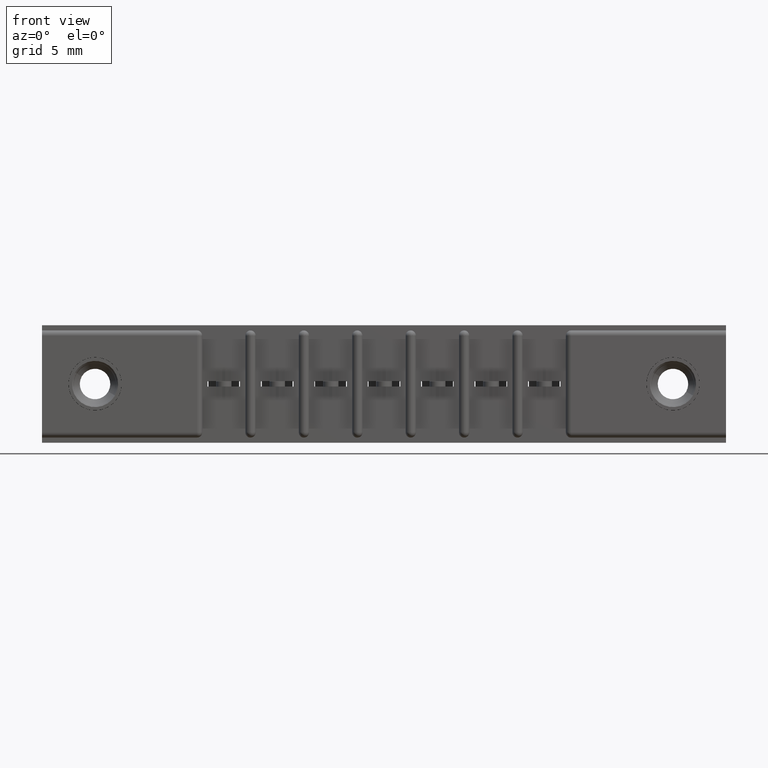
[diagram: clean part render]
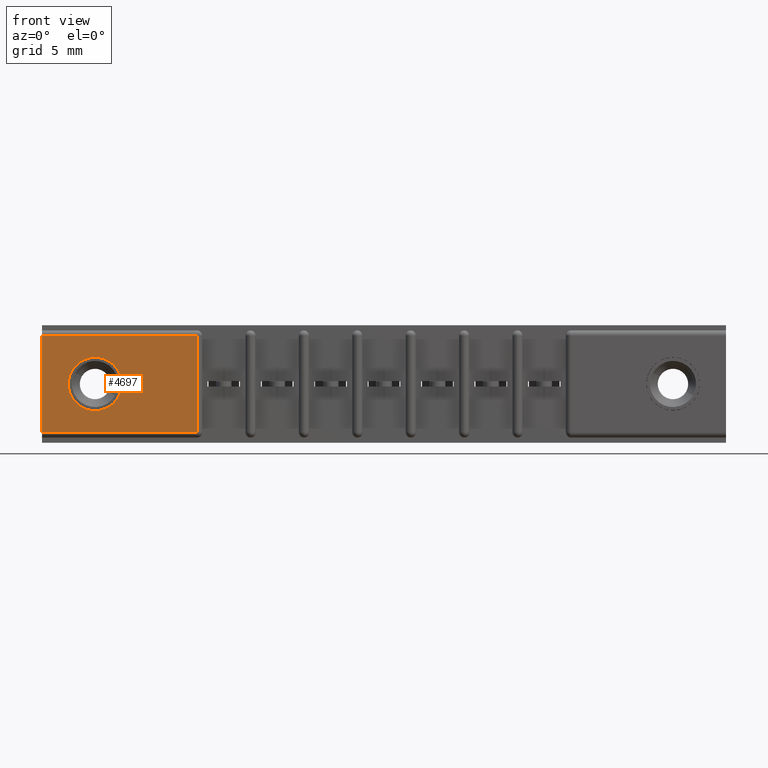
[diagram: same view with one face highlighted and labeled with its STEP entity id]
A machine part, front view. The second image highlights one B-rep face of the part: STEP entity #4697.
In plain terms, the highlighted planar face has unit normal (0, -1, 0).
Its self-contained STEP definition (entity closure, byte-faithful):
#60 = VECTOR ( 'NONE', #8180, 39.37007874015748100 ) ;
#98 = CARTESIAN_POINT ( 'NONE',  ( 0.1549999999999998600, 0.0000000000000000000, -0.09350000000000000000 ) ) ;
#221 = ORIENTED_EDGE ( 'NONE', *, *, #7317, .T. ) ;
#434 = VECTOR ( 'NONE', #11495, 39.37007874015748100 ) ;
#512 = AXIS2_PLACEMENT_3D ( 'NONE', #5513, #5495, #4992 ) ;
#657 = AXIS2_PLACEMENT_3D ( 'NONE', #4859, #5692, #5689 ) ;
#705 = DIRECTION ( 'NONE',  ( 0.0000000000000000000, -1.000000000000000000, 0.0000000000000000000 ) ) ;
#1179 = EDGE_CURVE ( 'NONE', #3787, #4543, #3653, .T. ) ;
#1220 = EDGE_CURVE ( 'NONE', #4543, #3787, #2685, .T. ) ;
#1227 = VERTEX_POINT ( 'NONE', #9111 ) ;
#1750 = CARTESIAN_POINT ( 'NONE',  ( 1.998000000000000000, 0.0000000000000000000, -0.3130000000000000600 ) ) ;
#2135 = EDGE_LOOP ( 'NONE', ( #8427, #4022 ) ) ;
#2315 = ORIENTED_EDGE ( 'NONE', *, *, #7335, .T. ) ;
#2394 = CARTESIAN_POINT ( 'NONE',  ( 0.0000000000000000000, 0.0000000000000000000, -0.02999999999999995400 ) ) ;
#2685 = CIRCLE ( 'NONE', #657, 0.07800000000000000000 ) ;
#2768 = LINE ( 'NONE', #5425, #10288 ) ;
#3423 = LINE ( 'NONE', #2394, #60 ) ;
#3653 = CIRCLE ( 'NONE', #512, 0.07800000000000000000 ) ;
#3787 = VERTEX_POINT ( 'NONE', #98 ) ;
#3805 = CARTESIAN_POINT ( 'NONE',  ( 0.4530000000000004000, 0.0000000000000000000, -0.02999999999999995400 ) ) ;
#4022 = ORIENTED_EDGE ( 'NONE', *, *, #1179, .F. ) ;
#4543 = VERTEX_POINT ( 'NONE', #9475 ) ;
#4697 = ADVANCED_FACE ( 'NONE', ( #11978, #4973 ), #11952, .T. ) ;
#4859 = CARTESIAN_POINT ( 'NONE',  ( 0.1549999999999998600, 0.0000000000000000000, -0.1715000000000000100 ) ) ;
#4973 = FACE_OUTER_BOUND ( 'NONE', #6993, .T. ) ;
#4992 = DIRECTION ( 'NONE',  ( 0.0000000000000000000, 0.0000000000000000000, -1.000000000000000000 ) ) ;
#5372 = CARTESIAN_POINT ( 'NONE',  ( 0.0000000000000000000, 0.0000000000000000000, -0.02999999999999995400 ) ) ;
#5425 = CARTESIAN_POINT ( 'NONE',  ( 0.0000000000000000000, 0.0000000000000000000, 0.0000000000000000000 ) ) ;
#5495 = DIRECTION ( 'NONE',  ( 0.0000000000000000000, -1.000000000000000000, 0.0000000000000000000 ) ) ;
#5513 = CARTESIAN_POINT ( 'NONE',  ( 0.1549999999999998600, 0.0000000000000000000, -0.1715000000000000100 ) ) ;
#5669 = VECTOR ( 'NONE', #9114, 39.37007874015748100 ) ;
#5689 = DIRECTION ( 'NONE',  ( 0.0000000000000000000, 0.0000000000000000000, -1.000000000000000000 ) ) ;
#5692 = DIRECTION ( 'NONE',  ( 0.0000000000000000000, -1.000000000000000000, 0.0000000000000000000 ) ) ;
#5816 = CARTESIAN_POINT ( 'NONE',  ( 0.0000000000000000000, 0.0000000000000000000, -0.3430000000000000300 ) ) ;
#5967 = LINE ( 'NONE', #1750, #434 ) ;
#6107 = ORIENTED_EDGE ( 'NONE', *, *, #7340, .T. ) ;
#6534 = CARTESIAN_POINT ( 'NONE',  ( 0.0000000000000000000, 0.0000000000000000000, -0.3130000000000000600 ) ) ;
#6993 = EDGE_LOOP ( 'NONE', ( #221, #2315, #6107, #7364 ) ) ;
#7317 = EDGE_CURVE ( 'NONE', #11556, #1227, #5967, .T. ) ;
#7335 = EDGE_CURVE ( 'NONE', #1227, #7708, #10512, .T. ) ;
#7340 = EDGE_CURVE ( 'NONE', #7708, #10694, #3423, .T. ) ;
#7364 = ORIENTED_EDGE ( 'NONE', *, *, #7375, .F. ) ;
#7375 = EDGE_CURVE ( 'NONE', #11556, #10694, #2768, .T. ) ;
#7708 = VERTEX_POINT ( 'NONE', #3805 ) ;
#7761 = DIRECTION ( 'NONE',  ( 0.0000000000000000000, -0.0000000000000000000, -1.000000000000000000 ) ) ;
#8180 = DIRECTION ( 'NONE',  ( -1.000000000000000000, 0.0000000000000000000, 0.0000000000000000000 ) ) ;
#8427 = ORIENTED_EDGE ( 'NONE', *, *, #1220, .F. ) ;
#8735 = AXIS2_PLACEMENT_3D ( 'NONE', #5816, #705, #7761 ) ;
#9111 = CARTESIAN_POINT ( 'NONE',  ( 0.4530000000000006200, 0.0000000000000000000, -0.3130000000000000600 ) ) ;
#9114 = DIRECTION ( 'NONE',  ( -6.545961646160369700E-016, -0.0000000000000000000, 1.000000000000000000 ) ) ;
#9475 = CARTESIAN_POINT ( 'NONE',  ( 0.1549999999999998600, 0.0000000000000000000, -0.2495000000000000000 ) ) ;
#10288 = VECTOR ( 'NONE', #11622, 39.37007874015748100 ) ;
#10512 = LINE ( 'NONE', #11893, #5669 ) ;
#10694 = VERTEX_POINT ( 'NONE', #5372 ) ;
#11495 = DIRECTION ( 'NONE',  ( 1.000000000000000000, -0.0000000000000000000, -0.0000000000000000000 ) ) ;
#11556 = VERTEX_POINT ( 'NONE', #6534 ) ;
#11622 = DIRECTION ( 'NONE',  ( -0.0000000000000000000, -0.0000000000000000000, 1.000000000000000000 ) ) ;
#11893 = CARTESIAN_POINT ( 'NONE',  ( 0.4530000000000004000, 0.0000000000000000000, -0.02999999999999995400 ) ) ;
#11952 = PLANE ( 'NONE',  #8735 ) ;
#11978 = FACE_BOUND ( 'NONE', #2135, .T. ) ;